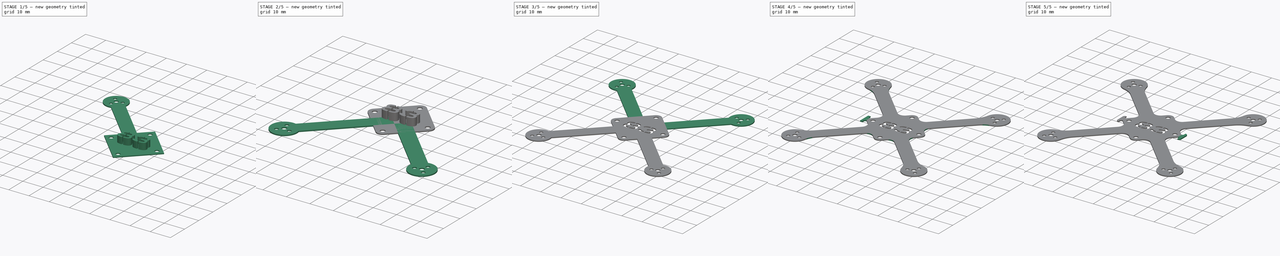
[diagram: build sequence overview — one tinted view per stage of 5, left to right]
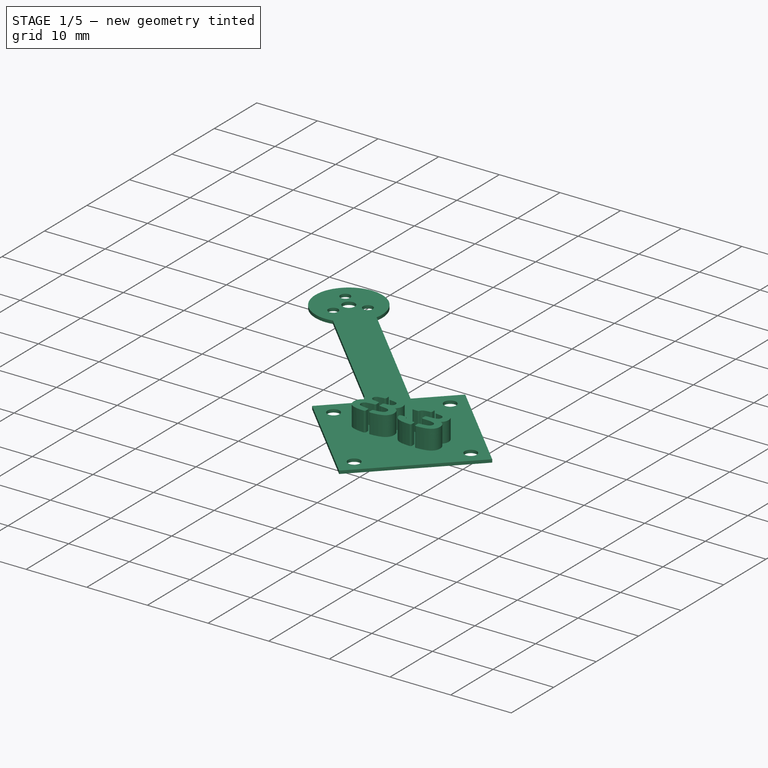
[diagram: stage 1 of 5 — iso view after this stage's code; geometry added in this stage tinted green]
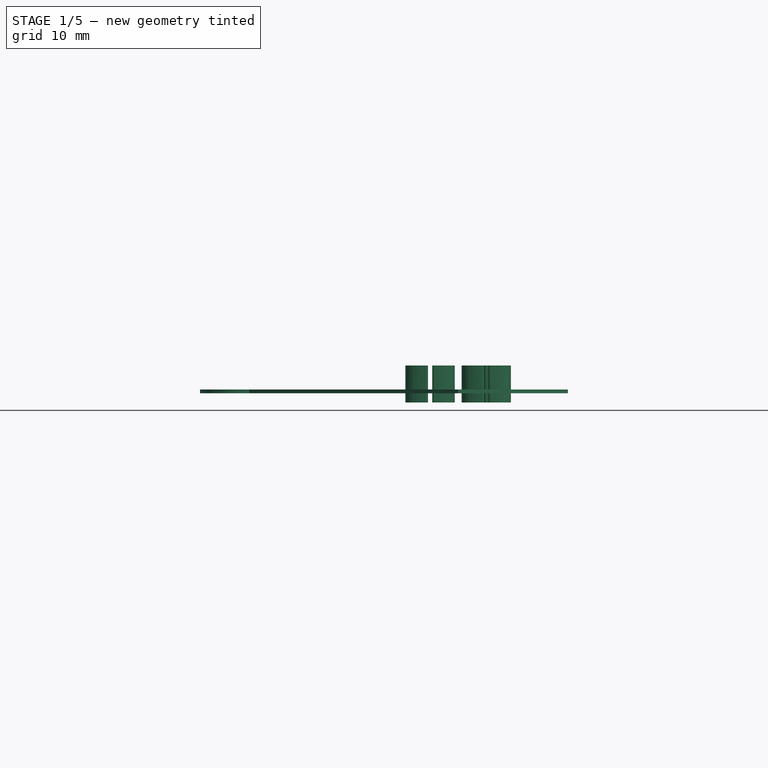
[diagram: stage 1 of 5 — front view after this stage's code; geometry added in this stage tinted green]
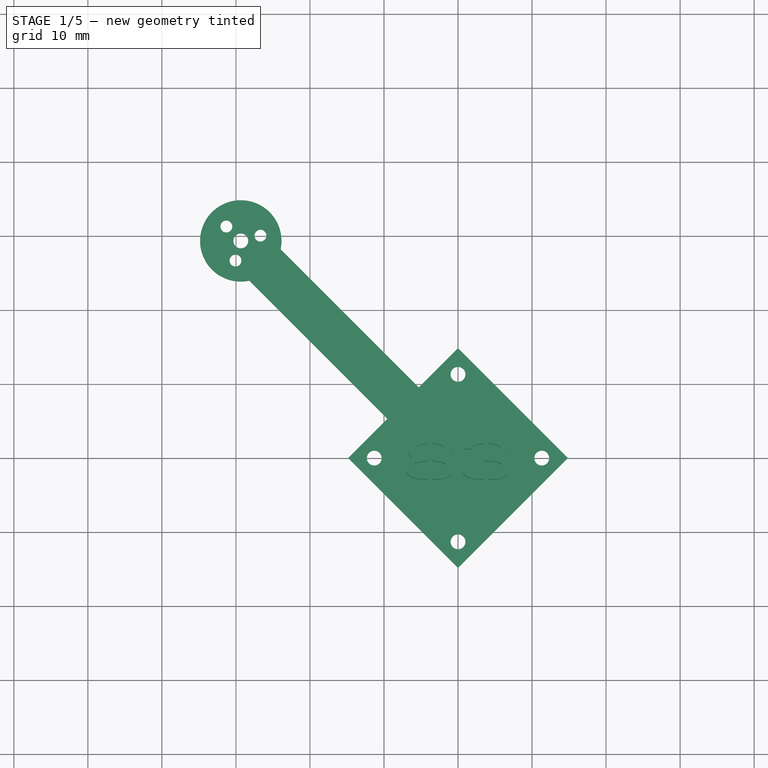
[diagram: stage 1 of 5 — top view after this stage's code; geometry added in this stage tinted green]
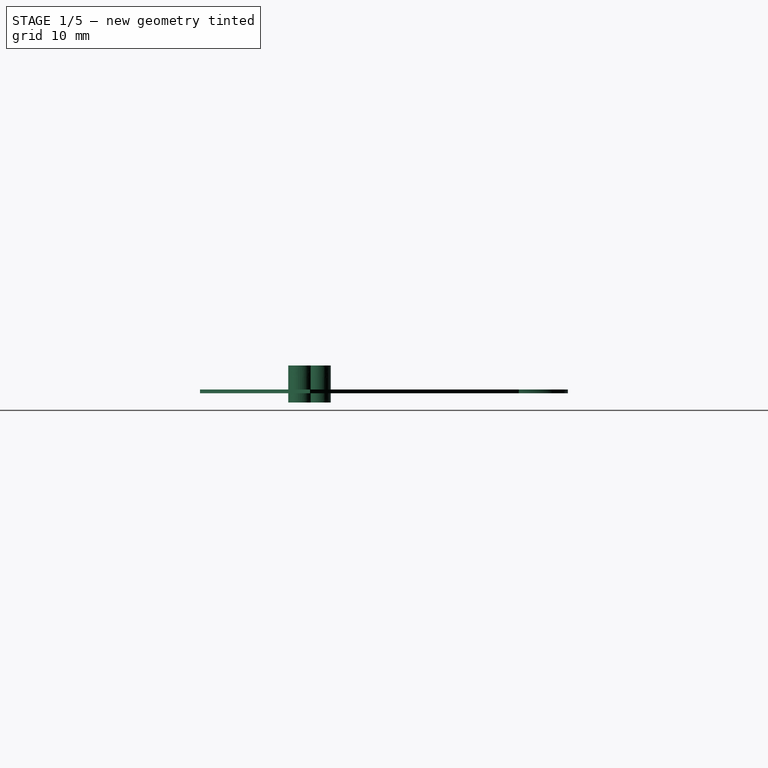
[diagram: stage 1 of 5 — right view after this stage's code; geometry added in this stage tinted green]
FCSTD DOCUMENT  (FreeCAD 0.16R6707 (Git))
Label: pepperFIISH_0705_X83
License: All rights reserved
LicenseURL: http://en.wikipedia.org/wiki/All_rights_reserved
objects: PartDesign::Fillet×5, Sketcher::SketchObject×3, PartDesign::Pad×3, PartDesign::Mirrored×2, Part::MultiFuse×2, Part::Mirroring×1, Part::Part2DObjectPython×1, Part::Extrusion×1, Part::Cut×1, Part::Feature×1
note: 23 computed .brp shape members not serialized (recipe doc carries the construction recipe); baked Part::Feature solids carry a one-line shape summary decoded from their .brp

FEATURE [Sketcher::SketchObject] Sketch  label="single arm sketch"
  expr: Constraints[25] = 83 / 2
  expr: Constraints.C8 = 56 / 2
  sketch-geometry (19):
    g0: Circle [constr] CenterX=-29.3449 CenterY=29.3449 CenterZ=0 NormalX=0 NormalY=0 NormalZ=1 Radius=2.75
    g1: Circle [constr] CenterX=-29.3449 CenterY=29.3449 CenterZ=0 NormalX=0 NormalY=0 NormalZ=1 Radius=28
    g2: Circle [constr] CenterX=29.3449 CenterY=29.3449 CenterZ=0 NormalX=0 NormalY=0 NormalZ=1 Radius=28
    g3: LineSegment [constr] StartX=-29.3449 StartY=29.3449 StartZ=0 EndX=0 EndY=0 EndZ=0
    g4: Circle CenterX=-26.6886 CenterY=30.0567 CenterZ=0 NormalX=0 NormalY=0 NormalZ=1 Radius=0.8
    g5: LineSegment StartX=-28.2067 StartY=23.964 StartZ=0 EndX=-4.24264 EndY=0 EndZ=0
    g6: LineSegment StartX=0 StartY=4.24264 StartZ=0 EndX=-23.964 EndY=28.2067 EndZ=0
    g7: LineSegment StartX=0 StartY=0 StartZ=0 EndX=0 EndY=4.24264 EndZ=0
    g8: LineSegment StartX=0 StartY=0 StartZ=0 EndX=-4.24264 EndY=0 EndZ=0
    g9: LineSegment [constr] StartX=-4.24264 StartY=0 StartZ=0 EndX=0 EndY=4.24264 EndZ=0
    g10: Circle CenterX=-29.3449 CenterY=29.3449 CenterZ=0 NormalX=0 NormalY=0 NormalZ=1 Radius=1
    g11: ArcOfCircle CenterX=-29.3449 CenterY=29.3449 CenterZ=0 NormalX=0 NormalY=0 NormalZ=1 Radius=5.5 StartAngle=6.07472 EndAngle=11.204
    g12: LineSegment [constr] StartX=-1.34493 StartY=29.3449 StartZ=0 EndX=1.34493 EndY=29.3449 EndZ=0
    g13: LineSegment [constr] StartX=-29.3449 StartY=29.3449 StartZ=0 EndX=-23.964 EndY=28.2067 EndZ=0
    g14: Circle CenterX=-31.2895 CenterY=31.2895 CenterZ=0 NormalX=0 NormalY=0 NormalZ=1 Radius=0.8
    g15: Circle CenterX=-30.0567 CenterY=26.6886 CenterZ=0 NormalX=0 NormalY=0 NormalZ=1 Radius=0.8
    g16: LineSegment [constr] StartX=-30.0567 StartY=26.6886 StartZ=0 EndX=-26.6886 EndY=30.0567 EndZ=0
    g17: LineSegment [constr] StartX=-26.6886 StartY=30.0567 StartZ=0 EndX=-31.2895 EndY=31.2895 EndZ=0
    g18: LineSegment [constr] StartX=-31.2895 StartY=31.2895 StartZ=0 EndX=-30.0567 EndY=26.6886 EndZ=0
  constraints (50):
    c: Radius(g0) = 2.75
    c: Coincident(g1,g0)
    c: Radius(g1) = 28  'C8'
    c: Equal(g2,g1)  'Constraint5'
    c: Symmetric(g0,g2,g-2)
    c: DistanceX(g0,g2) = 58.6899  'Constraint8'
    c: Coincident(g3,g-1)  'Constraint7'
    c: Angle(g-2,g3) = 0.785398
    c: Coincident(g0,g3)
    c: Parallel(g6,g5)
    c: Coincident(g7,g-1)
    c: Vertical(g7)
    c: Coincident(g8,g-1)
    c: Horizontal(g8)
    c: Coincident(g6,g7)
    c: Coincident(g5,g8)
    c: Symmetric(g6,g5,g3)
    c: Coincident(g9,g5)
    c: Perpendicular(g3,g9)
    c: Distance(g9) = 6
    c: Coincident(g9,g6)
    c: Coincident(g10,g0)
    c: Radius(g10) = 1
    c: Coincident(g11,g6)
    c: Coincident(g11,g5)
    c: Distance(g3) = 41.5
    c: PointOnObject(g12,g1)
    c: PointOnObject(g12,g2)
    c: Perpendicular(g2,g12)
    c: Perpendicular(g1,g12)
    c: DistanceX(g12,g12) = 2.68986
    c: Radius(g11) = 5.5
    c: Radius(g4) = 0.8
    c: Coincident(g13,g0)
    c: PointOnObject(g11,g13)
    c: Coincident(g13,g6)
    c: PointOnObject(g14,g0)
    c: PointOnObject(g15,g0)
    c: Equal(g15,g4)
    c: Equal(g14,g4)
    c: Coincident(g16,g15)
    c: Coincident(g16,g4)
    c: Coincident(g17,g4)
    c: Coincident(g17,g14)
    c: Coincident(g18,g14)
    c: Coincident(g18,g15)
    c: Equal(g18,g17)
    c: Equal(g16,g17)
    c: PointOnObject(g14,g3)
    c: PointOnObject(g4,g0)
FEATURE [Sketcher::SketchObject] Sketch001  label="center sketch"
  sketch-geometry (15):
    g0: LineSegment [constr] StartX=0 StartY=11.3137 StartZ=0 EndX=-11.3137 EndY=0 EndZ=0
    g1: LineSegment [constr] StartX=-11.3137 StartY=0 StartZ=0 EndX=0 EndY=-11.3137 EndZ=0
    g2: LineSegment [constr] StartX=0 StartY=-11.3137 StartZ=0 EndX=11.3137 EndY=0 EndZ=0
    g3: LineSegment [constr] StartX=11.3137 StartY=0 StartZ=0 EndX=0 EndY=11.3137 EndZ=0
    g4: Circle [constr] CenterX=0 CenterY=0 CenterZ=0 NormalX=0 NormalY=0 NormalZ=1 Radius=11.3137
    g5: Circle CenterX=-11.3137 CenterY=0 CenterZ=0 NormalX=0 NormalY=0 NormalZ=1 Radius=1
    g6: Circle CenterX=0 CenterY=11.3137 CenterZ=0 NormalX=0 NormalY=0 NormalZ=1 Radius=1
    g7: Circle CenterX=11.3137 CenterY=0 CenterZ=0 NormalX=0 NormalY=0 NormalZ=1 Radius=1
    g8: Circle CenterX=0 CenterY=-11.3137 CenterZ=0 NormalX=0 NormalY=0 NormalZ=1 Radius=1
    g9: LineSegment StartX=0 StartY=14.8492 StartZ=0 EndX=-14.8492 EndY=0 EndZ=0
    g10: LineSegment StartX=-14.8492 StartY=0 StartZ=0 EndX=0 EndY=-14.8492 EndZ=0
    g11: LineSegment StartX=0 StartY=-14.8492 StartZ=0 EndX=14.8492 EndY=0 EndZ=0
    g12: LineSegment StartX=14.8492 StartY=0 StartZ=0 EndX=0 EndY=14.8492 EndZ=0
    g13: Circle [constr] CenterX=0 CenterY=0 CenterZ=0 NormalX=0 NormalY=0 NormalZ=1 Radius=14.8492
    g14: LineSegment [constr] StartX=0.707107 StartY=12.0208 StartZ=0 EndX=1.76777 EndY=13.0815 EndZ=0
  constraints (41):
    c: Coincident(g0,g1)
    c: Coincident(g1,g2)
    c: Coincident(g2,g3)
    c: Coincident(g3,g0)
    c: Equal(g0,g1)
    c: Equal(g0,g2)
    c: Equal(g0,g3)
    c: PointOnObject(g0,g4)
    c: PointOnObject(g1,g4)
    c: PointOnObject(g2,g4)
    c: PointOnObject(g3,g4)
    c: Coincident(g1,g-1)
    c: Coincident(g4,g-1)
    c: PointOnObject(g0,g-2)
    c: Distance(g0) = 16
    c: Coincident(g6,g0)
    c: Coincident(g7,g2)
    c: Coincident(g8,g1)
    c: Radius(g5) = 1
    c: Equal(g5,g6)
    c: Equal(g6,g7)
    c: Equal(g7,g8)
    c: Coincident(g9,g10)
    c: Coincident(g10,g11)
    c: Coincident(g11,g12)
    c: Coincident(g12,g9)
    c: Equal(g9,g10)
    c: Equal(g9,g11)
    c: Equal(g9,g12)
    c: PointOnObject(g9,g13)
    c: PointOnObject(g10,g13)
    c: PointOnObject(g11,g13)
    c: PointOnObject(g12,g13)
    c: Coincident(g10,g-1)
    c: PointOnObject(g9,g-2)
    c: PointOnObject(g14,g6)
    c: PointOnObject(g14,g12)
    c: Perpendicular(g12,g14)
    c: Coincident(g13,g-1)
    c: Distance(g14) = 1.5
    c: Perpendicular(g6,g14)
FEATURE [PartDesign::Pad] Pad001  label="center"
  Length = 0.5
  Length2 = 100
  Midplane = true
  Sketch = -> Sketch001
  Type = 0
FEATURE [PartDesign::Pad] Pad  label="single arm"
  Length = 0.5
  Length2 = 100
  Midplane = true
  Sketch = -> Sketch
  Type = 0
FEATURE [Part::Part2DObjectPython] ShapeString  # Draft 2D object (typed FeaturePython)
  FontFile = <userpath>/.fonts/Antaris_ST_CF.otf
  Placement = pos=(-7.6,-3.35,-1.5) rot=(0,0,1;0rad)
  Size = 3.5
  String = 83
  Tracking = 0
FEATURE [Part::Extrusion] Extrude
  Base = -> ShapeString
  Dir = (0,0,5)
  Solid = false
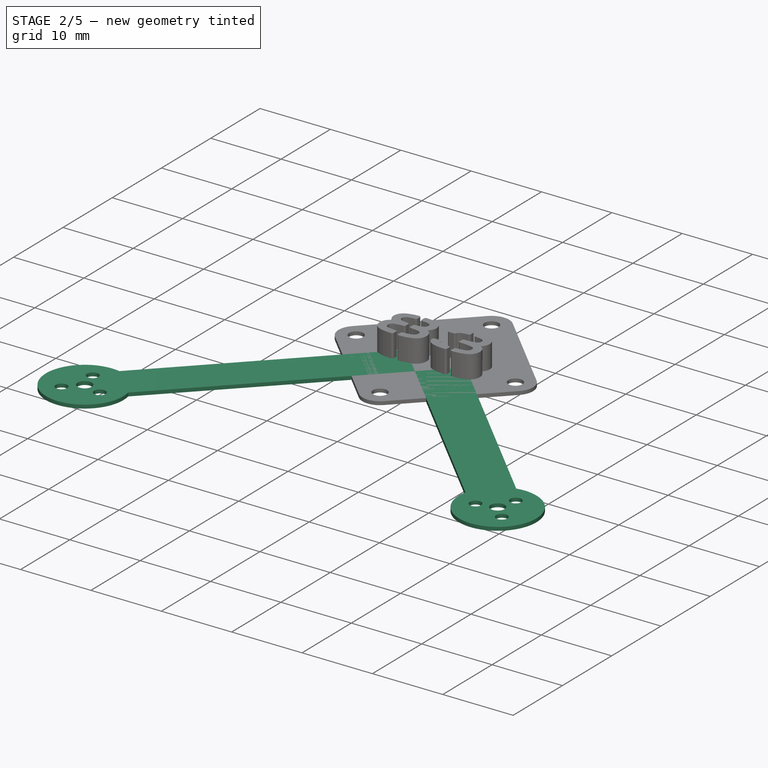
[diagram: stage 2 of 5 — iso view after this stage's code; geometry added in this stage tinted green]
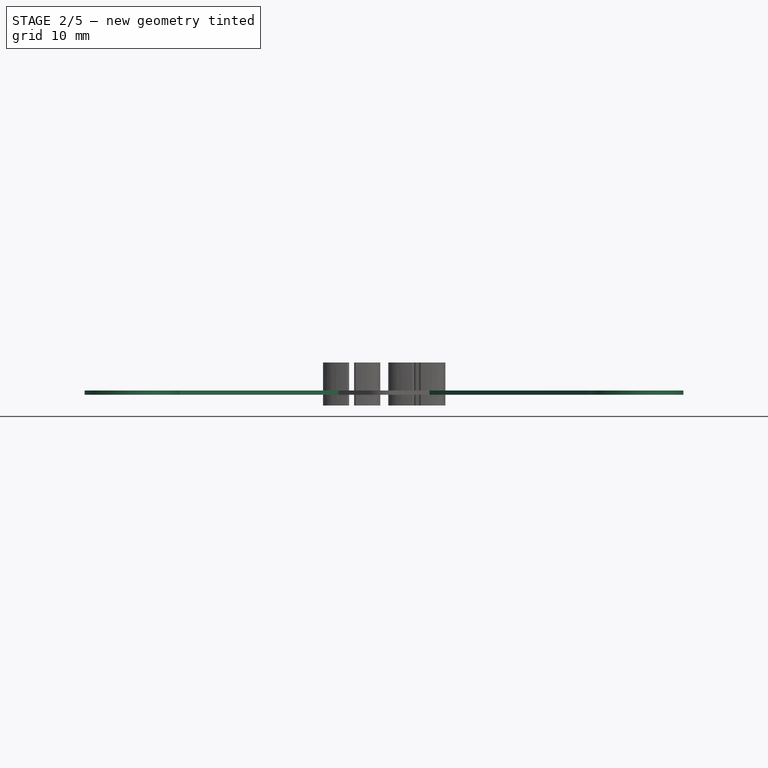
[diagram: stage 2 of 5 — front view after this stage's code; geometry added in this stage tinted green]
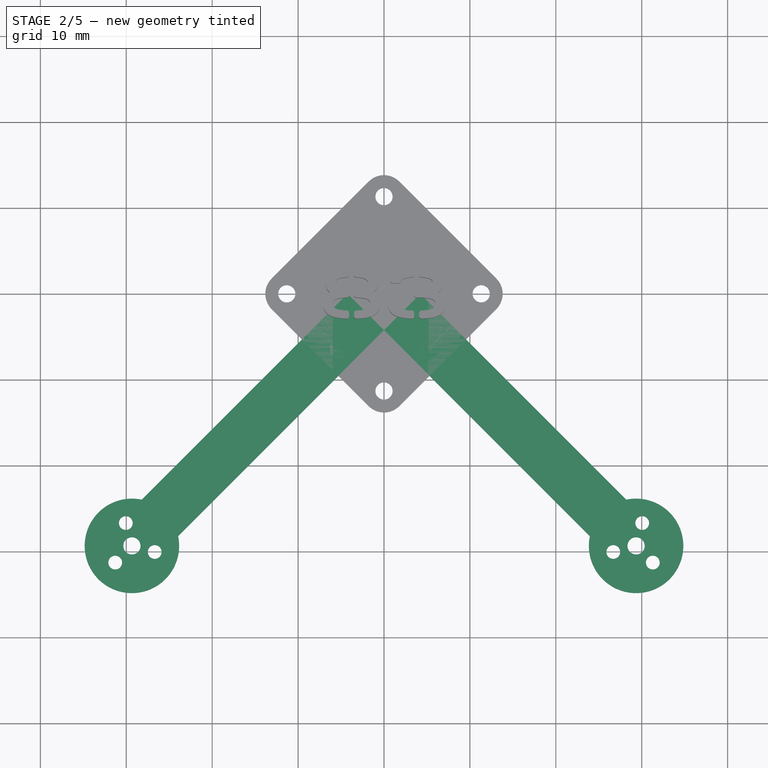
[diagram: stage 2 of 5 — top view after this stage's code; geometry added in this stage tinted green]
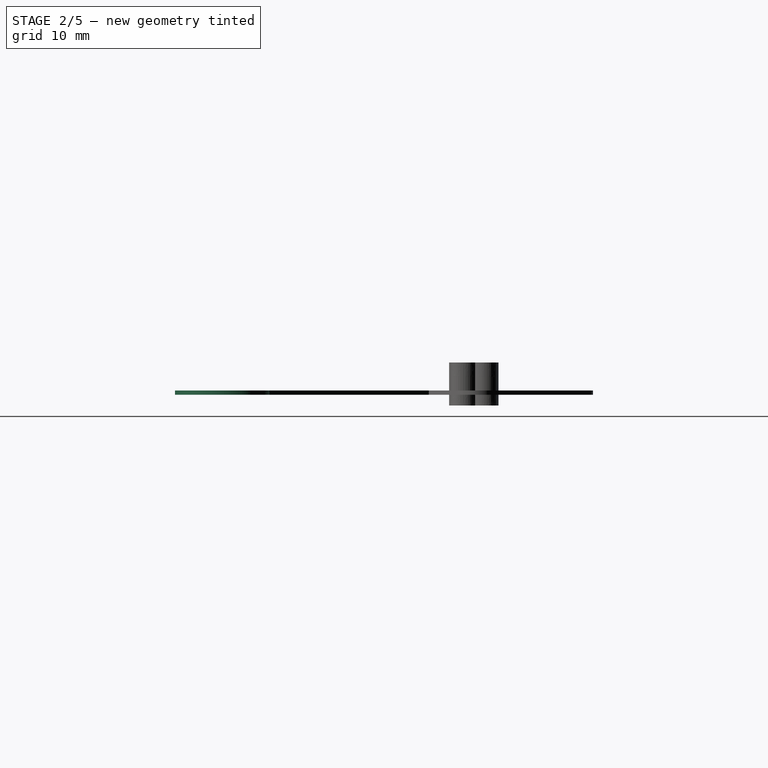
[diagram: stage 2 of 5 — right view after this stage's code; geometry added in this stage tinted green]
FEATURE [PartDesign::Fillet] Fillet
  Base = -> Pad001 [Edge1,Edge2,Edge5,Edge8]
  Radius = 1
FEATURE [PartDesign::Mirrored] Mirrored
  MirrorPlane = -> Sketch [V_Axis]
  Originals = -> [Pad]
FEATURE [Part::Mirroring] Part__Mirroring  label="Mirrored (Mirror #1)"
  Base = (0,0,0)
  Normal = (0,1,0)
  Source = -> Mirrored
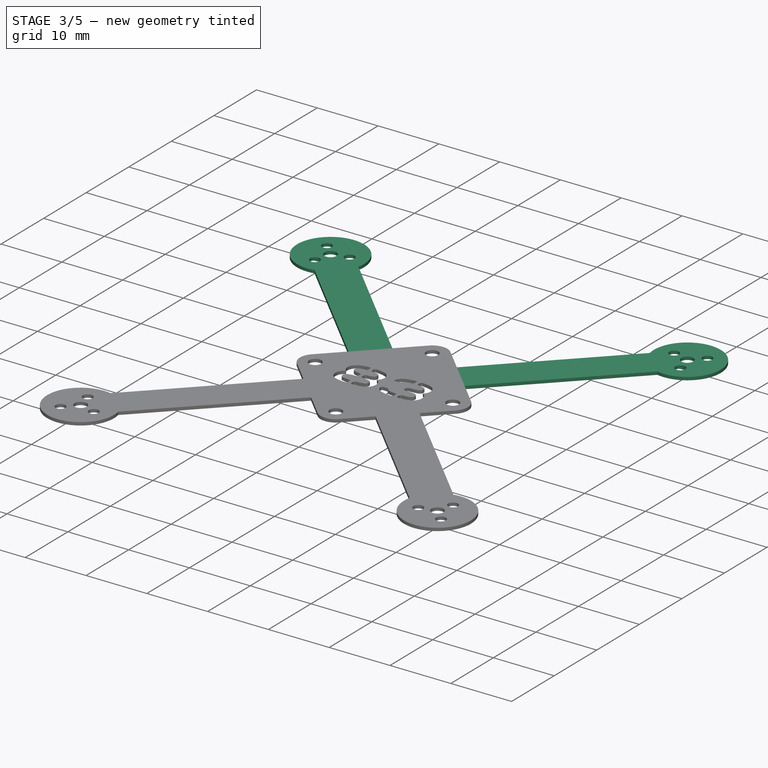
[diagram: stage 3 of 5 — iso view after this stage's code; geometry added in this stage tinted green]
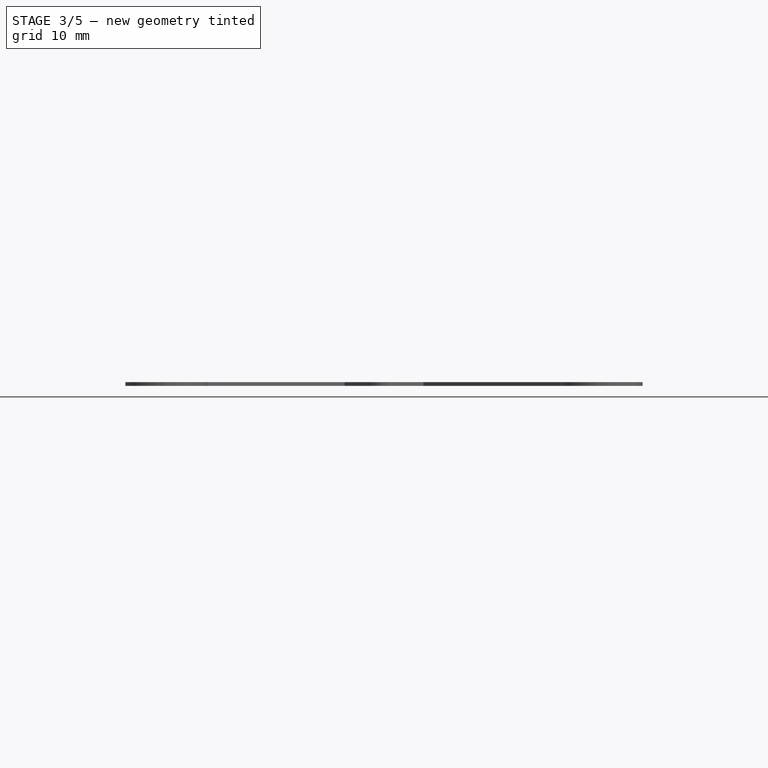
[diagram: stage 3 of 5 — front view after this stage's code; geometry added in this stage tinted green]
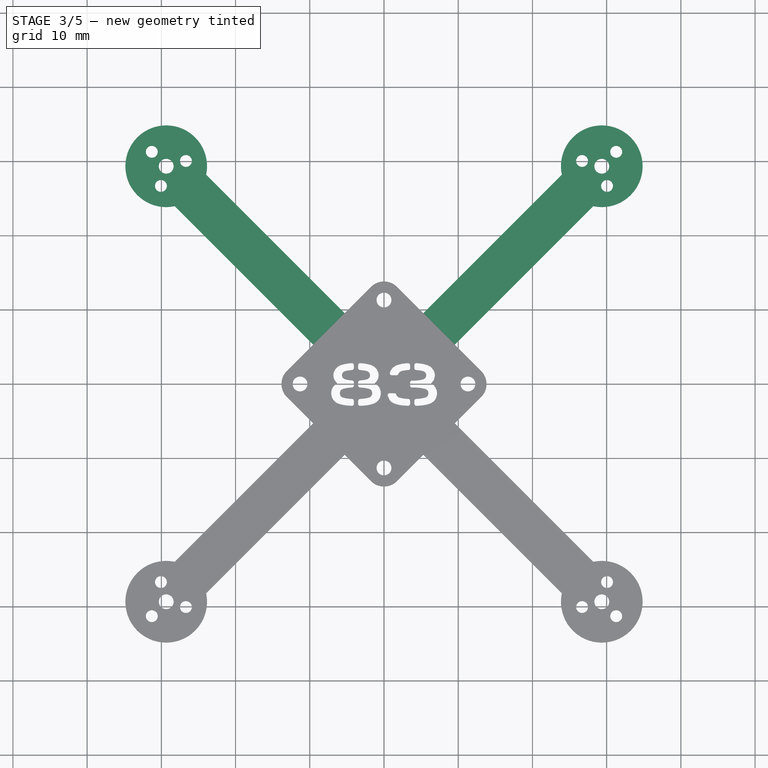
[diagram: stage 3 of 5 — top view after this stage's code; geometry added in this stage tinted green]
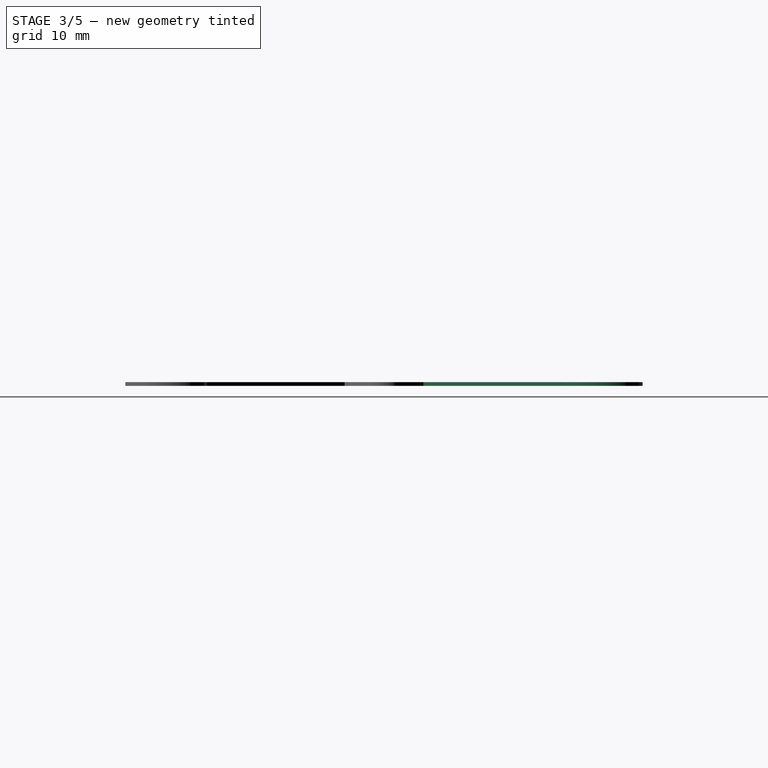
[diagram: stage 3 of 5 — right view after this stage's code; geometry added in this stage tinted green]
FEATURE [Part::MultiFuse] Fusion
  Shapes = -> [Mirrored,Part__Mirroring]
FEATURE [Part::MultiFuse] Fusion001
  Shapes = -> [Fusion,Fillet]
FEATURE [Part::Cut] Cut
  Base = -> Fusion001
  Tool = -> Extrude
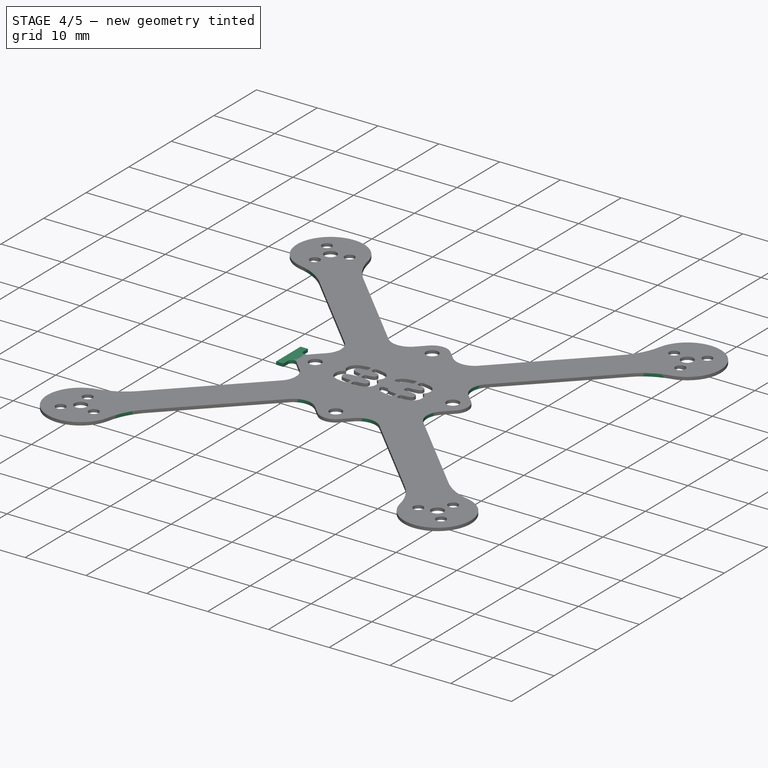
[diagram: stage 4 of 5 — iso view after this stage's code; geometry added in this stage tinted green]
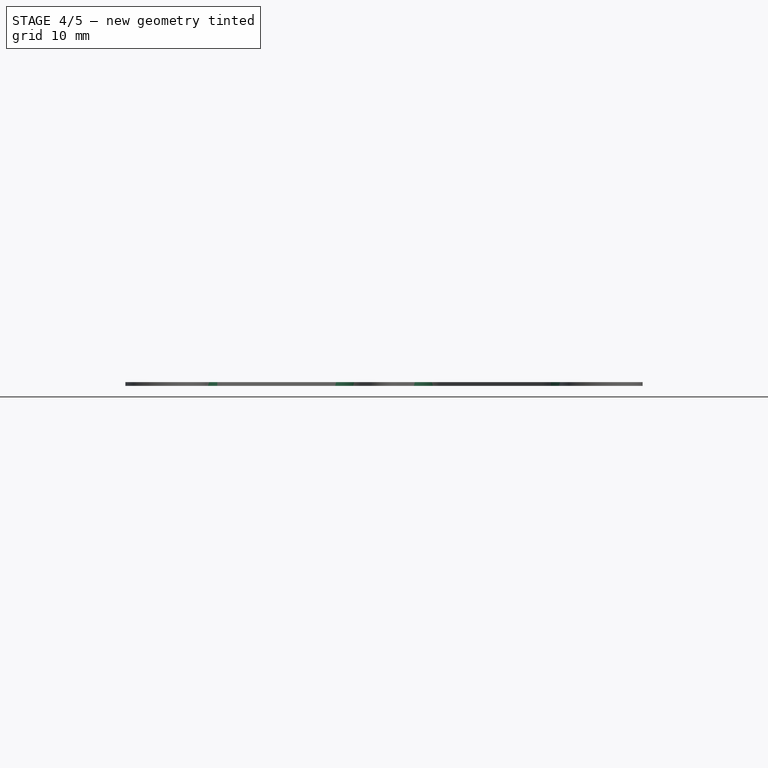
[diagram: stage 4 of 5 — front view after this stage's code; geometry added in this stage tinted green]
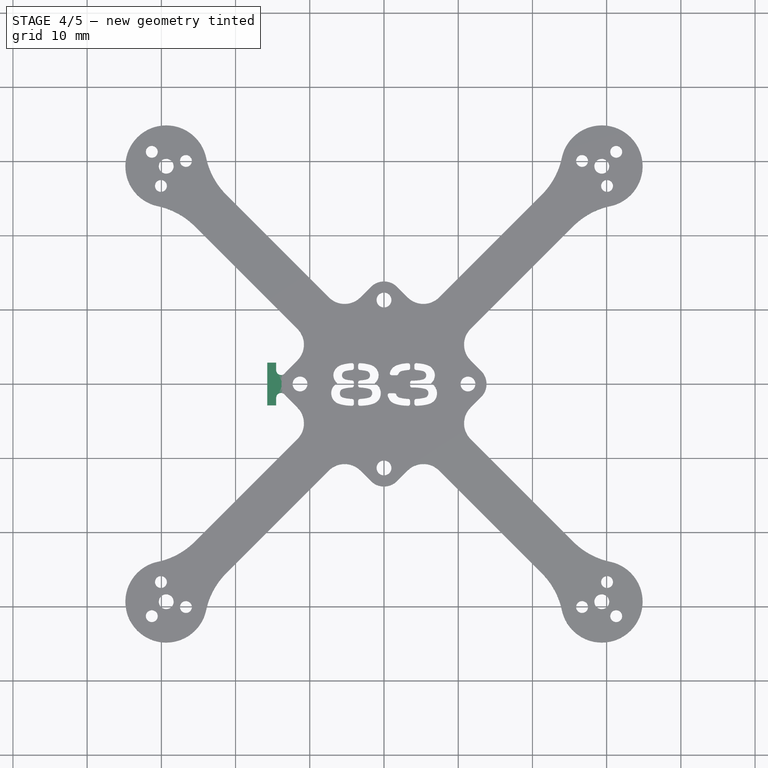
[diagram: stage 4 of 5 — top view after this stage's code; geometry added in this stage tinted green]
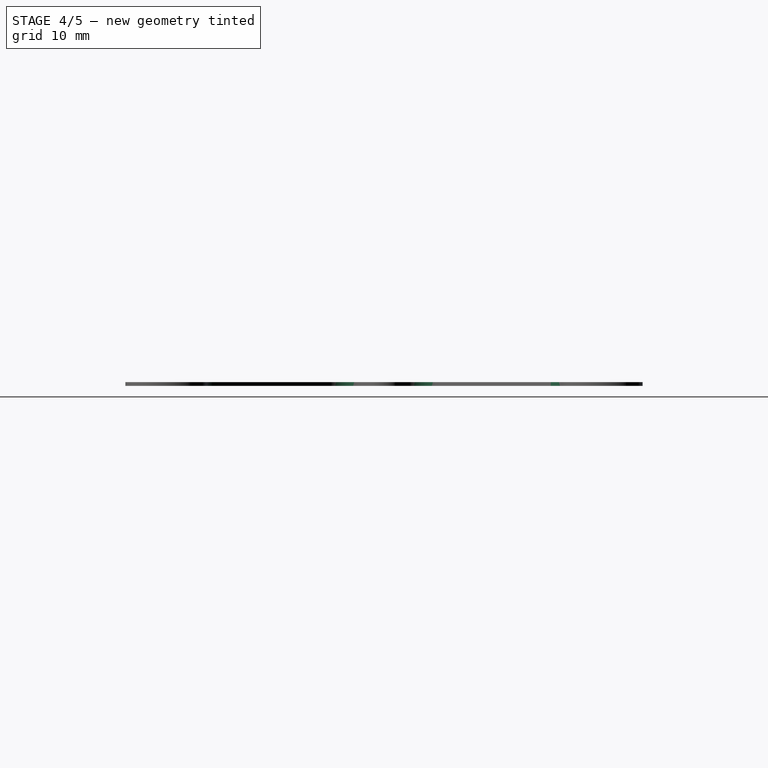
[diagram: stage 4 of 5 — right view after this stage's code; geometry added in this stage tinted green]
FEATURE [PartDesign::Fillet] Fillet001
  Base = -> Cut [Edge302,Edge300,Edge2,Edge1,Edge303,Edge305,Edge312,Edge314]
  Radius = 10
FEATURE [PartDesign::Fillet] Fillet002
  Base = -> Fillet001 [Edge337,Edge330,Edge324,Edge314,Edge321,Edge331,Edge311,Edge315]
  Radius = 3
FEATURE [Sketcher::SketchObject] Sketch002
  ExternalGeometry = -> [Fillet002]
  Placement = pos=(0,0,0.25) rot=(0,0,1;0rad)
  Support = -> Fillet002 [Face163]
  sketch-geometry (8):
    g0: LineSegment StartX=-14.5294 StartY=2.8719 StartZ=0 EndX=-14.5294 EndY=1.8719 EndZ=0
    g1: LineSegment StartX=-14.5294 StartY=2.8719 StartZ=0 EndX=-15.7294 EndY=2.8719 EndZ=0
    g2: LineSegment StartX=-14.5294 StartY=-2.87189 StartZ=0 EndX=-15.7294 EndY=-2.87189 EndZ=0
    g3: LineSegment StartX=-15.7294 StartY=-2.87189 StartZ=0 EndX=-15.7294 EndY=2.8719 EndZ=0
    g4: LineSegment StartX=-13.3294 StartY=1.47889 StartZ=0 EndX=-13.3294 EndY=-1.47889 EndZ=0
    g5: ArcOfCircle CenterX=-13.865 CenterY=-1.87189 CenterZ=0 NormalX=0 NormalY=0 NormalZ=1 Radius=0.664356 StartAngle=0.632987 EndAngle=3.14159
    g6: LineSegment StartX=-14.5294 StartY=-2.87189 StartZ=0 EndX=-14.5294 EndY=-1.87189 EndZ=0
    g7: ArcOfCircle CenterX=-13.865 CenterY=1.8719 CenterZ=0 NormalX=0 NormalY=0 NormalZ=1 Radius=0.664356 StartAngle=3.14159 EndAngle=5.65019
  constraints (27):
    c: DistanceX(g0,g4) = 1.2
    c: Vertical(g0)
    c: Horizontal(g1)
    c: DistanceY(g0,g0) = 1
    c: DistanceX(g1,g1) = 1.2
    c: Horizontal(g2)
    c: Coincident(g3,g2)
    c: Coincident(g3,g1)
    c: Vertical(g3)
    c: Coincident(g1,g0)
    c: PointOnObject(g4,g-3)
    c: PointOnObject(g4,g-3)
    c: PointOnObject(g5,g-3)
    c: Tangent(g5,g-3,g5) = 1.5708
    c: Coincident(g6,g2)
    c: Coincident(g6,g5)
    c: Vertical(g6)
    c: Tangent(g6,g5)
    c: Tangent(g7,g-3)
    c: Tangent(g7,g0)
    c: Coincident(g7,g0)
    c: PointOnObject(g7,g-3)
    c: Equal(g7,g5)
    c: Coincident(g4,g7)
    c: Vertical(g4)
    c: Coincident(g4,g5)
    c: Equal(g6,g0)
FEATURE [PartDesign::Pad] Pad002
  Length = 0.5
  Length2 = 100
  Reversed = true
  Sketch = -> Sketch002
  Type = 0
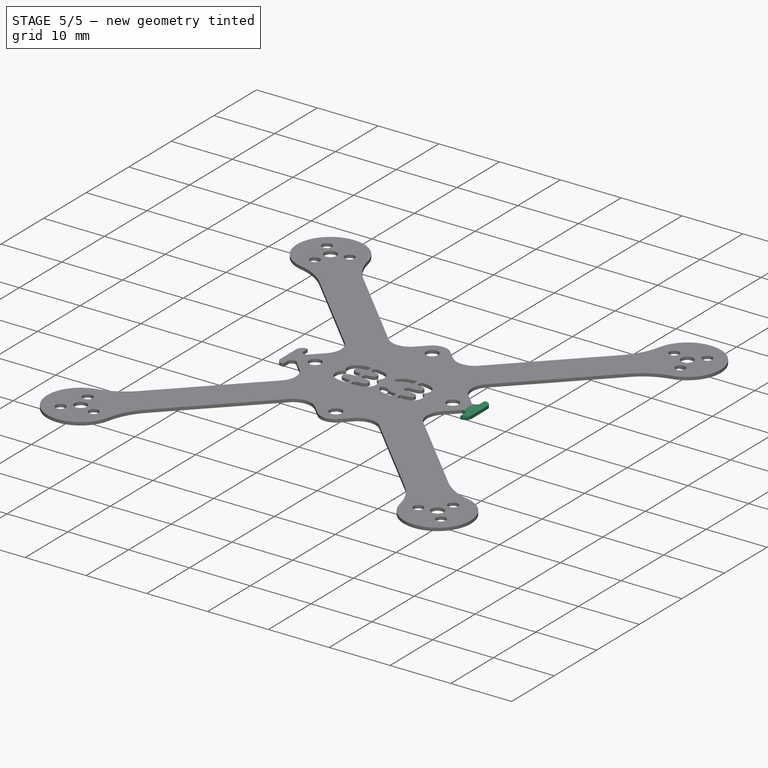
[diagram: stage 5 of 5 — iso view after this stage's code; geometry added in this stage tinted green]
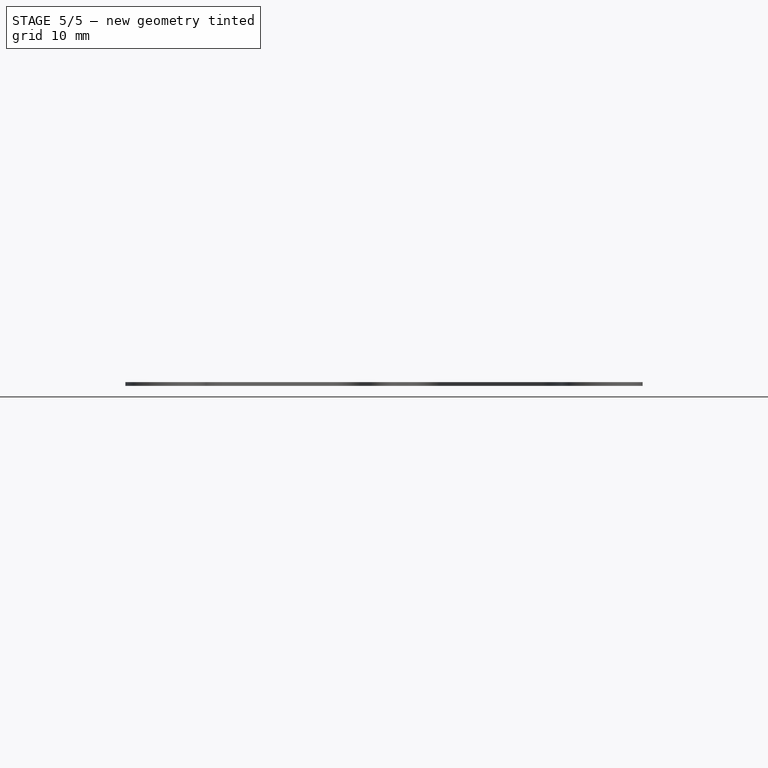
[diagram: stage 5 of 5 — front view after this stage's code; geometry added in this stage tinted green]
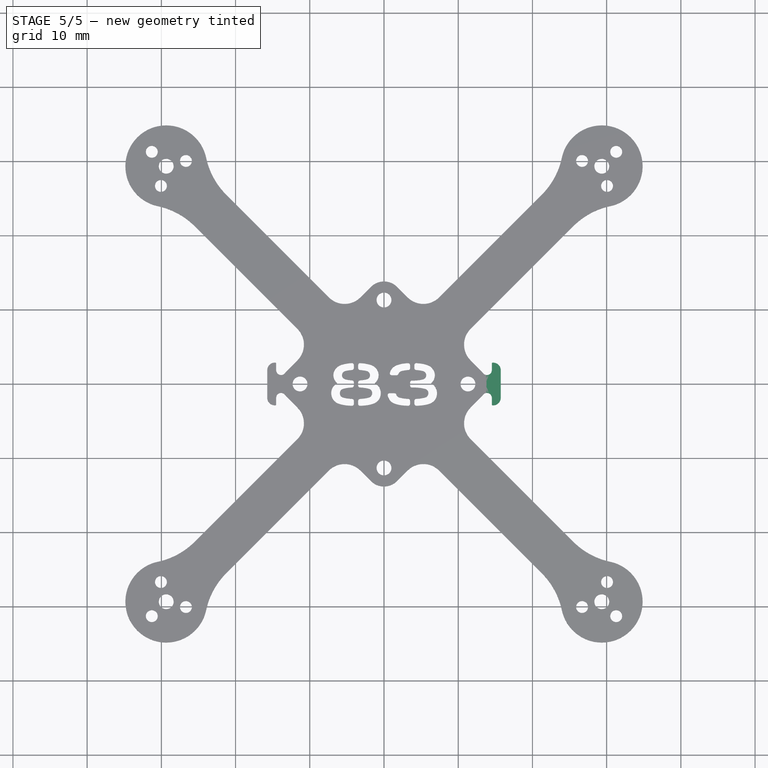
[diagram: stage 5 of 5 — top view after this stage's code; geometry added in this stage tinted green]
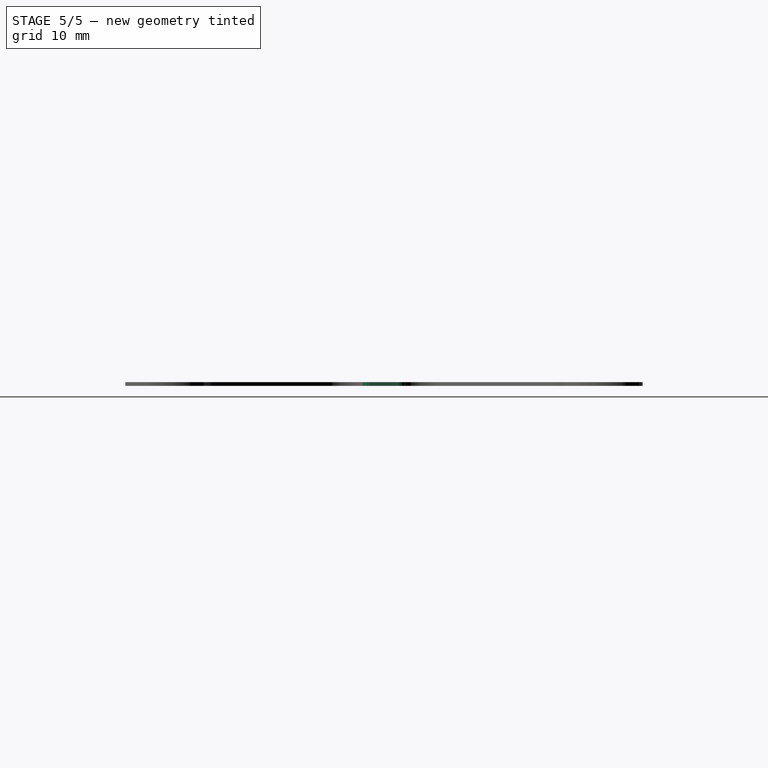
[diagram: stage 5 of 5 — right view after this stage's code; geometry added in this stage tinted green]
FEATURE [PartDesign::Mirrored] Mirrored001
  MirrorPlane = -> Sketch002 [V_Axis]
  Originals = -> [Pad002]
FEATURE [PartDesign::Fillet] Fillet003
  Base = -> Mirrored001 [Edge8,Edge2,Edge538,Edge537]
  Radius = 1
FEATURE [PartDesign::Fillet] Fillet004
  Base = -> Fillet003 [Edge551,Edge546,Edge29,Edge3]
  Radius = 0.1
FEATURE [Part::Feature] Fillet004001  label="Fillet005"
  shape: bbox 69.69 x 69.69 x 0.5 mm, 187 faces (baked)
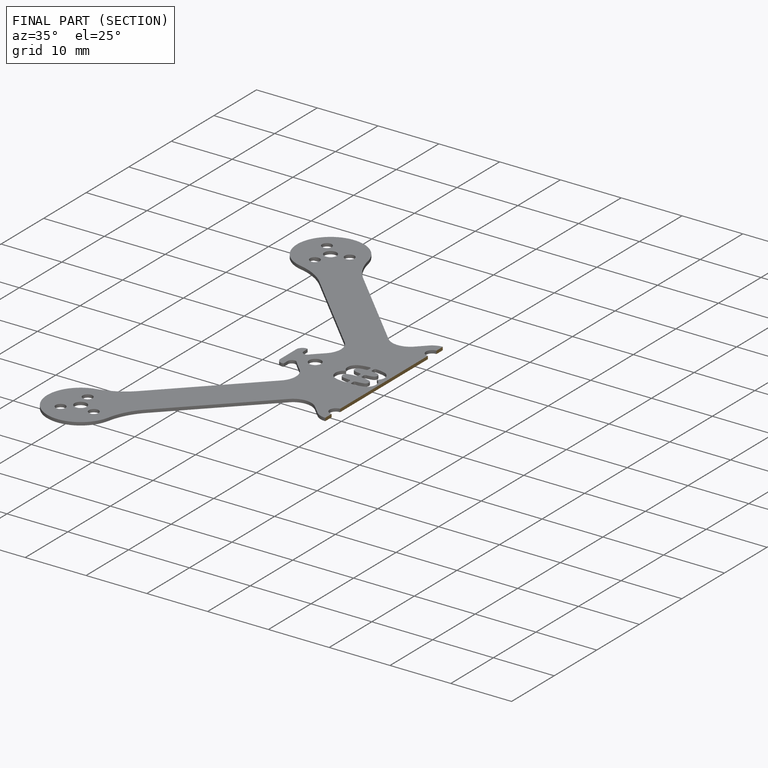
[diagram: finished part — half-section view (interior)]
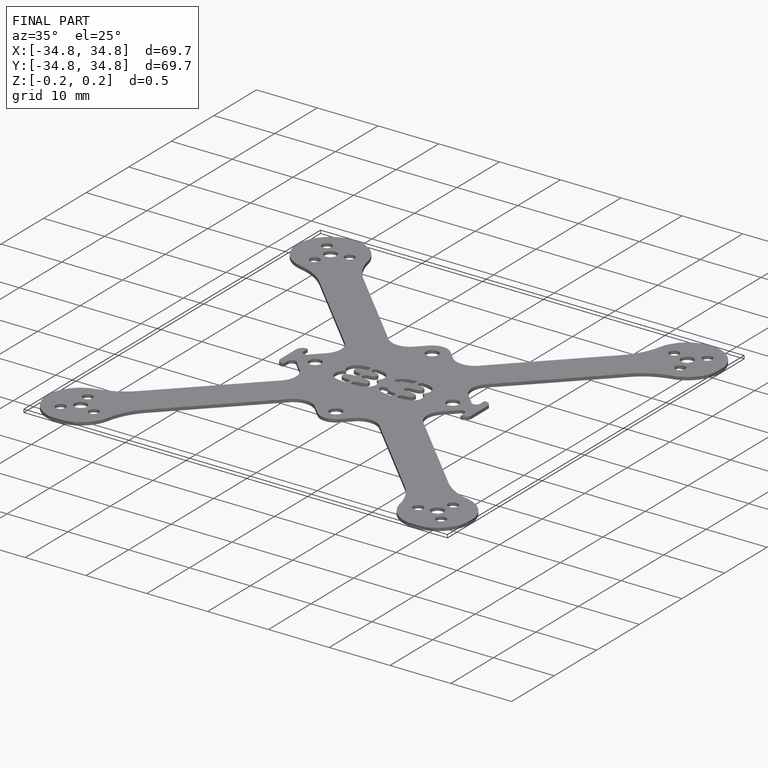
[diagram: finished part — iso view with bounding-box wireframe]
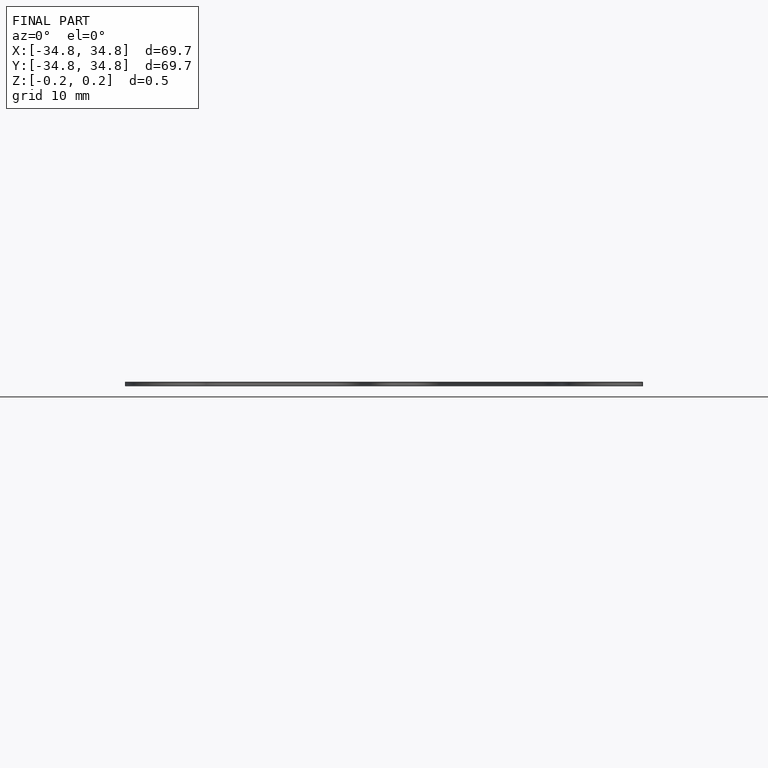
[diagram: finished part — front view with bounding-box wireframe]
